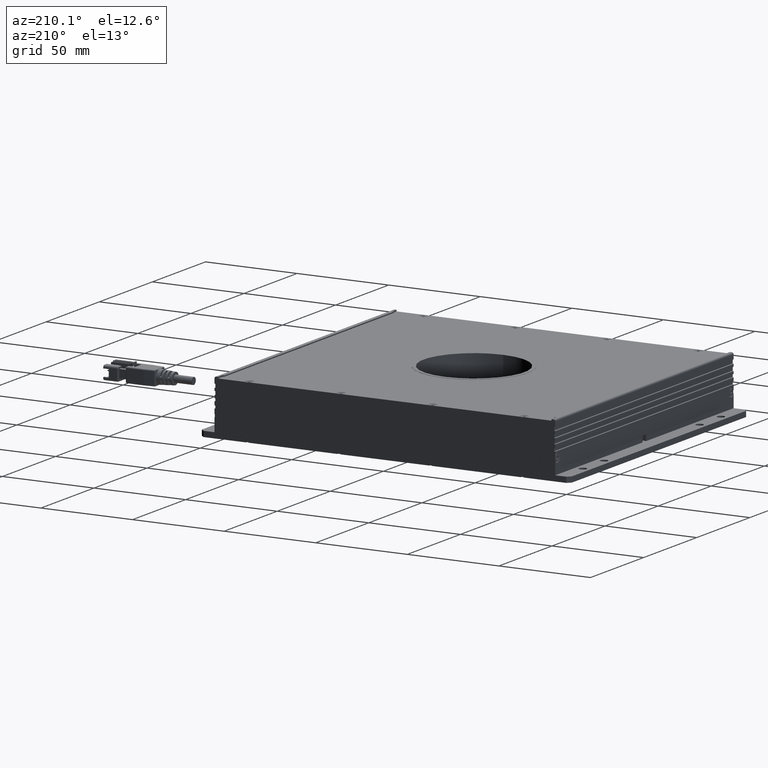
[diagram: clean part render]
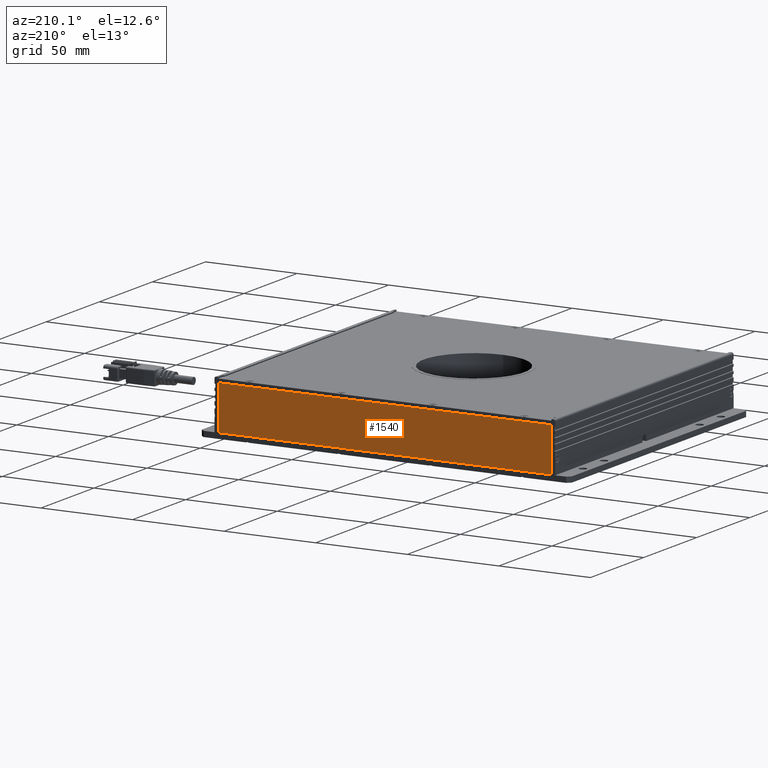
[diagram: same view with one face highlighted and labeled with its STEP entity id]
A machine part, auxiliary view. The second image highlights one B-rep face of the part: STEP entity #1540.
In plain terms, the highlighted planar face has unit normal (0, 1, 0).
Its self-contained STEP definition (entity closure, byte-faithful):
#1540=ADVANCED_FACE('5:1606',(#4406),#4407,.T.);
#4406=FACE_OUTER_BOUND('',#8708,.T.);
#4407=PLANE('',#8709);
#8708=EDGE_LOOP('',(#14527,#14528,#14529,#14530));
#8709=AXIS2_PLACEMENT_3D('',#14531,#14532,#14533);
#14527=ORIENTED_EDGE('',*,*,#22506,.T.);
#14528=ORIENTED_EDGE('',*,*,#22500,.T.);
#14529=ORIENTED_EDGE('',*,*,#22265,.T.);
#14530=ORIENTED_EDGE('',*,*,#22504,.T.);
#14531=CARTESIAN_POINT('',(0.101,0.0986050000000001,-0.0146249999999997));
#14532=DIRECTION('',(0.0,1.0,3.49148336110938E-15));
#14533=DIRECTION('',(0.0,3.49148336110938E-15,-1.0));
#22265=EDGE_CURVE('5:7045',#24890,#24888,#24891,.T.);
#22500=EDGE_CURVE('5:7051',#25279,#24890,#25280,.F.);
#22504=EDGE_CURVE('5:7039',#24888,#25283,#25285,.F.);
#22506=EDGE_CURVE('5:7057',#25283,#25279,#25287,.F.);
#24888=VERTEX_POINT('',#28659);
#24890=VERTEX_POINT('',#28662);
#24891=LINE('',#28663,#28664);
#25279=VERTEX_POINT('',#29243);
#25280=LINE('',#29244,#29245);
#25283=VERTEX_POINT('',#29249);
#25285=LINE('',#29252,#29253);
#25287=LINE('',#29255,#29256);
#28659=CARTESIAN_POINT('',(0.091,0.098605,-0.0116249999999997));
#28662=CARTESIAN_POINT('',(0.091,0.098605,0.0125750000000003));
#28663=CARTESIAN_POINT('',(0.091,0.098605,0.0125750000000003));
#28664=VECTOR('',#33391,1.0);
#29243=CARTESIAN_POINT('',(-0.091,0.098605,0.0125750000000003));
#29244=CARTESIAN_POINT('',(0.091,0.098605,0.0125750000000003));
#29245=VECTOR('',#33679,1.0);
#29249=CARTESIAN_POINT('',(-0.0909999999999966,0.098605,-0.0116249999999997));
#29252=CARTESIAN_POINT('',(-0.093,0.098605,-0.0116249999999997));
#29253=VECTOR('',#33682,1.0);
#29255=CARTESIAN_POINT('',(-0.0909999999999966,0.098605,0.0125750000000003));
#29256=VECTOR('',#33683,1.0);
#33391=DIRECTION('',(0.0,3.44077383664821E-15,-1.0));
#33679=DIRECTION('',(-1.0,0.0,0.0));
#33682=DIRECTION('',(1.0,0.0,0.0));
#33683=DIRECTION('',(-5.73462306108035E-16,3.44077383664821E-15,-1.0));